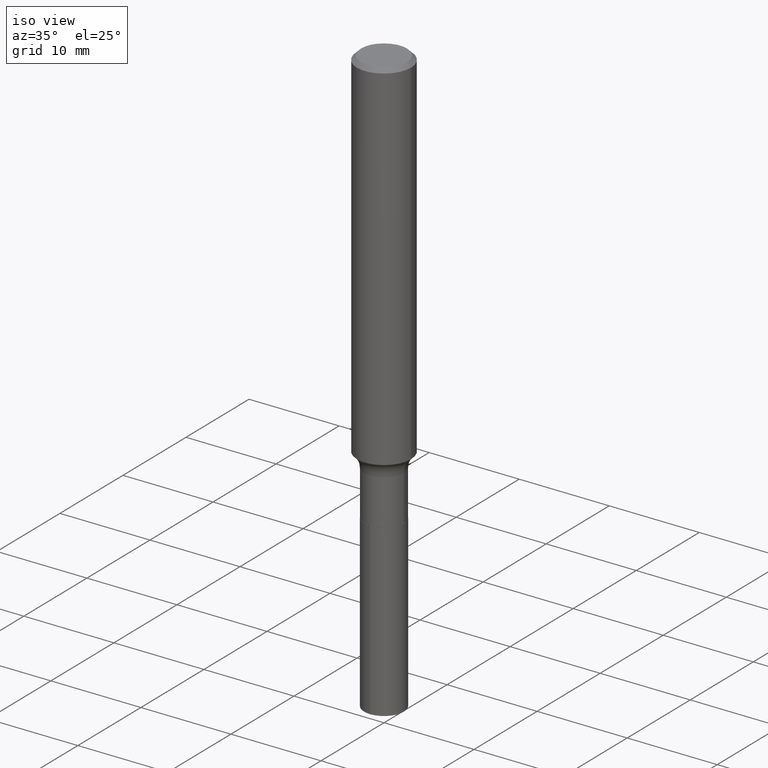
[diagram: clean part render]
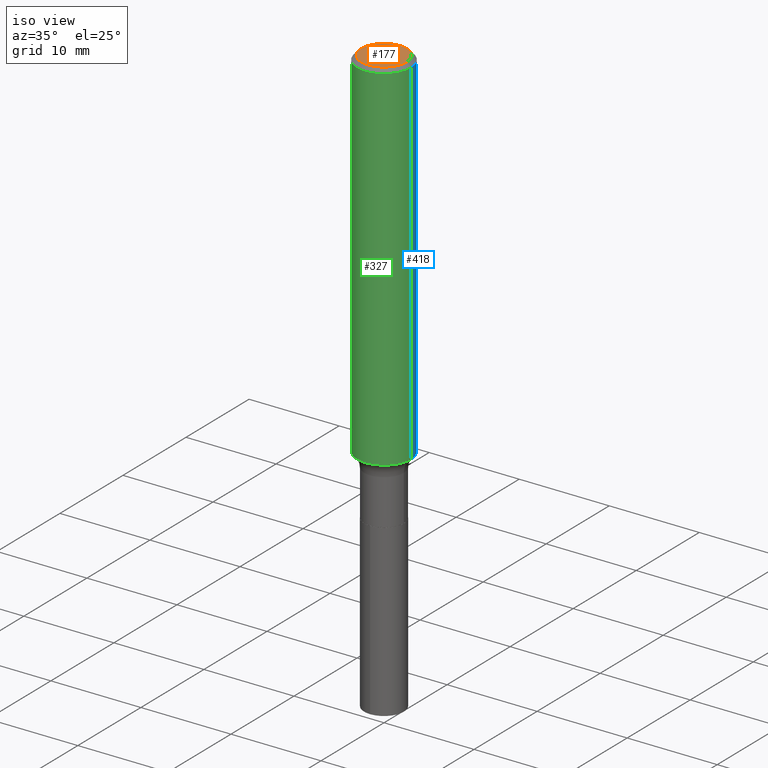
[diagram: same view with three faces highlighted in distinct colors, each labeled with its STEP entity id]
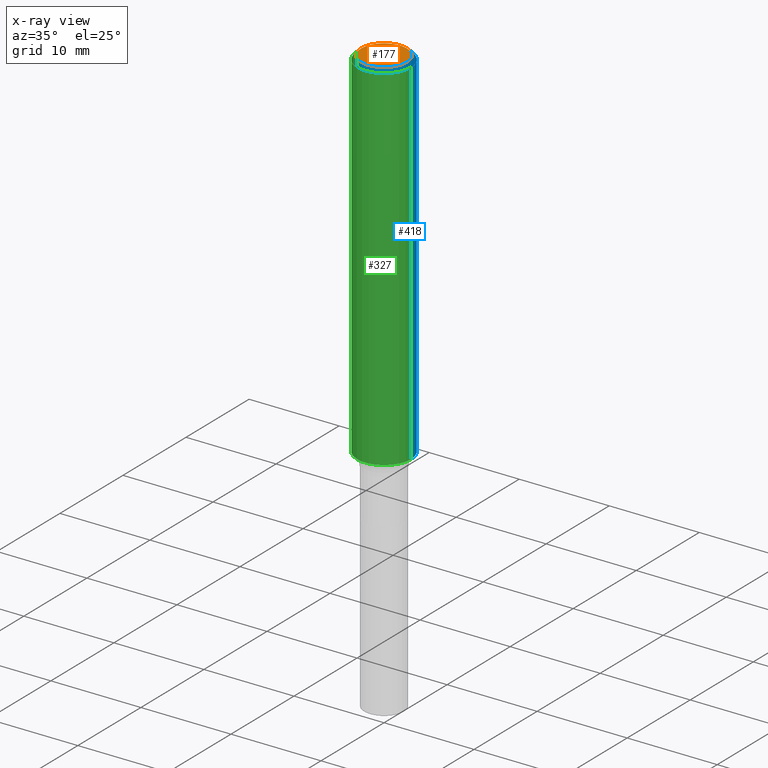
[diagram: x-ray of the same camera — body ghosted, the three highlighted faces saturated]
A machine part, iso view with three faces highlighted in distinct colors.
The next image is the same camera in x-ray (body ghosted, the three faces saturated) — at least one of them is partly hidden behind the body in this view.
Their STEP definitions:

[orange] entity #177 — the highlighted planar face has unit normal (0, -0, -1).
#15 = ORIENTED_EDGE ( 'NONE', *, *, #126, .T. ) ;
#27 = VERTEX_POINT ( 'NONE', #184 ) ;
#65 = ORIENTED_EDGE ( 'NONE', *, *, #92, .T. ) ;
#73 = AXIS2_PLACEMENT_3D ( 'NONE', #108, #151, #156 ) ;
#79 = FACE_OUTER_BOUND ( 'NONE', #315, .T. ) ;
#90 = AXIS2_PLACEMENT_3D ( 'NONE', #286, #434, #215 ) ;
#92 = EDGE_CURVE ( 'NONE', #27, #466, #443, .T. ) ;
#108 = CARTESIAN_POINT ( 'NONE',  ( 1.002970424325033577E-46, -1.431975951230896486E-32, -4.101342130344485961E-18 ) ) ;
#126 = EDGE_CURVE ( 'NONE', #466, #27, #199, .T. ) ;
#151 = DIRECTION ( 'NONE',  ( -2.445468806185136597E-29, 3.491481338843145583E-15, 1.000000000000000000 ) ) ;
#156 = DIRECTION ( 'NONE',  ( 1.000000000000000000, -6.982962677686266711E-15, 4.876140833081945105E-29 ) ) ;
#163 = DIRECTION ( 'NONE',  ( 2.438088387897960049E-29, -3.491481338843145188E-15, -1.000000000000000000 ) ) ;
#177 = ADVANCED_FACE ( 'NONE', ( #79 ), #337, .F. ) ;
#184 = CARTESIAN_POINT ( 'NONE',  ( -0.1003850000000000020, 7.319105043583386689E-16, -4.101342130349496461E-18 ) ) ;
#199 = CIRCLE ( 'NONE', #90, 0.1003850000000000020 ) ;
#215 = DIRECTION ( 'NONE',  ( 1.000000000000000000, -6.982962677686266711E-15, 4.876140833081945105E-29 ) ) ;
#227 = CARTESIAN_POINT ( 'NONE',  ( 0.1003850000000000020, -7.803837484803598359E-16, -4.101342130339306751E-18 ) ) ;
#286 = CARTESIAN_POINT ( 'NONE',  ( 1.002970424325033577E-46, -1.431975951230896486E-32, -4.101342130344485961E-18 ) ) ;
#294 = AXIS2_PLACEMENT_3D ( 'NONE', #404, #163, #407 ) ;
#315 = EDGE_LOOP ( 'NONE', ( #65, #15 ) ) ;
#337 = PLANE ( 'NONE',  #294 ) ;
#404 = CARTESIAN_POINT ( 'NONE',  ( 5.014852121625167883E-47, -7.159879756154482429E-33, -2.050671065172242981E-18 ) ) ;
#407 = DIRECTION ( 'NONE',  ( -1.000000000000000000, 6.982962677686265922E-15, -4.876176775795935793E-29 ) ) ;
#434 = DIRECTION ( 'NONE',  ( -2.445468806185136597E-29, 3.491481338843145583E-15, 1.000000000000000000 ) ) ;
#443 = CIRCLE ( 'NONE', #73, 0.1003850000000000020 ) ;
#466 = VERTEX_POINT ( 'NONE', #227 ) ;

[blue] entity #418 — the highlighted cylindrical surface (edge-blend (fillet) strip) has radius 2.9997 mm, axis along (-0, 0, 1).
#3 = VECTOR ( 'NONE', #142, 39.37007874015748143 ) ;
#24 = AXIS2_PLACEMENT_3D ( 'NONE', #339, #402, #455 ) ;
#32 = DIRECTION ( 'NONE',  ( -2.445468806185136877E-29, 3.491481338843145188E-15, 1.000000000000000000 ) ) ;
#33 = EDGE_CURVE ( 'NONE', #241, #180, #186, .T. ) ;
#58 = EDGE_CURVE ( 'NONE', #241, #400, #355, .T. ) ;
#124 = EDGE_CURVE ( 'NONE', #400, #384, #319, .T. ) ;
#131 = AXIS2_PLACEMENT_3D ( 'NONE', #448, #413, #490 ) ;
#135 = ORIENTED_EDGE ( 'NONE', *, *, #33, .F. ) ;
#140 = VECTOR ( 'NONE', #32, 39.37007874015748143 ) ;
#142 = DIRECTION ( 'NONE',  ( -2.445468806185136877E-29, 3.491481338843145188E-15, 1.000000000000000000 ) ) ;
#180 = VERTEX_POINT ( 'NONE', #304 ) ;
#186 = LINE ( 'NONE', #292, #140 ) ;
#196 = CYLINDRICAL_SURFACE ( 'NONE', #24, 0.1181000000000000799 ) ;
#241 = VERTEX_POINT ( 'NONE', #242 ) ;
#242 = CARTESIAN_POINT ( 'NONE',  ( 0.1181000000000001909, -6.288423672468409536E-15, -1.564876122764555344 ) ) ;
#292 = CARTESIAN_POINT ( 'NONE',  ( 0.1181000000000000799, -8.246878922347486570E-16, 5.758764772215004644E-30 ) ) ;
#295 = EDGE_LOOP ( 'NONE', ( #316, #472, #439, #135 ) ) ;
#304 = CARTESIAN_POINT ( 'NONE',  ( 0.1180999999999999966, -8.865394841523547570E-16, -0.01771500000000010913 ) ) ;
#316 = ORIENTED_EDGE ( 'NONE', *, *, #58, .T. ) ;
#319 = LINE ( 'NONE', #477, #3 ) ;
#320 = CIRCLE ( 'NONE', #131, 0.1180999999999999966 ) ;
#328 = DIRECTION ( 'NONE',  ( 1.000000000000000000, -6.982962677686270655E-15, 0.000000000000000000 ) ) ;
#329 = AXIS2_PLACEMENT_3D ( 'NONE', #363, #359, #328 ) ;
#335 = EDGE_CURVE ( 'NONE', #180, #384, #320, .T. ) ;
#336 = CARTESIAN_POINT ( 'NONE',  ( -0.1181000000000001909, -4.624584809300980709E-15, -1.564876122764555344 ) ) ;
#339 = CARTESIAN_POINT ( 'NONE',  ( 0.000000000000000000, 0.000000000000000000, 0.000000000000000000 ) ) ;
#355 = CIRCLE ( 'NONE', #329, 0.1181000000000001632 ) ;
#359 = DIRECTION ( 'NONE',  ( -2.445468806185136597E-29, 3.491481338843145583E-15, 1.000000000000000000 ) ) ;
#363 = CARTESIAN_POINT ( 'NONE',  ( 3.826855743764662661E-29, -5.463735780233660484E-15, -1.564876122764555344 ) ) ;
#366 = CARTESIAN_POINT ( 'NONE',  ( -0.1180999999999999966, -1.923642715142953961E-15, -0.01771500000000010913 ) ) ;
#372 = FACE_OUTER_BOUND ( 'NONE', #295, .T. ) ;
#384 = VERTEX_POINT ( 'NONE', #366 ) ;
#400 = VERTEX_POINT ( 'NONE', #336 ) ;
#402 = DIRECTION ( 'NONE',  ( -2.445468806185136597E-29, 3.491481338843145583E-15, 1.000000000000000000 ) ) ;
#413 = DIRECTION ( 'NONE',  ( -2.445468806185136597E-29, 3.491481338843145583E-15, 1.000000000000000000 ) ) ;
#418 = ADVANCED_FACE ( 'NONE', ( #372 ), #196, .T. ) ;
#439 = ORIENTED_EDGE ( 'NONE', *, *, #335, .F. ) ;
#448 = CARTESIAN_POINT ( 'NONE',  ( 4.332147990156996744E-31, -6.185159191760670395E-17, -0.01771500000000010913 ) ) ;
#455 = DIRECTION ( 'NONE',  ( 1.000000000000000000, -6.982962677686266711E-15, 4.876176775795936353E-29 ) ) ;
#472 = ORIENTED_EDGE ( 'NONE', *, *, #124, .T. ) ;
#477 = CARTESIAN_POINT ( 'NONE',  ( -0.1181000000000000799, 8.391509709326788873E-16, -5.809262341591047988E-30 ) ) ;
#490 = DIRECTION ( 'NONE',  ( 1.000000000000000000, -6.982962677686266711E-15, 0.000000000000000000 ) ) ;

[green] entity #327 — the highlighted cylindrical surface (edge-blend (fillet) strip) has radius 2.9997 mm, axis along (-0, 0, 1).
#3 = VECTOR ( 'NONE', #142, 39.37007874015748143 ) ;
#17 = AXIS2_PLACEMENT_3D ( 'NONE', #300, #264, #484 ) ;
#28 = CYLINDRICAL_SURFACE ( 'NONE', #204, 0.1181000000000000799 ) ;
#32 = DIRECTION ( 'NONE',  ( -2.445468806185136877E-29, 3.491481338843145188E-15, 1.000000000000000000 ) ) ;
#33 = EDGE_CURVE ( 'NONE', #241, #180, #186, .T. ) ;
#59 = EDGE_LOOP ( 'NONE', ( #470, #282, #210, #74 ) ) ;
#71 = FACE_OUTER_BOUND ( 'NONE', #59, .T. ) ;
#74 = ORIENTED_EDGE ( 'NONE', *, *, #459, .F. ) ;
#78 = DIRECTION ( 'NONE',  ( -2.445468806185136597E-29, 3.491481338843145583E-15, 1.000000000000000000 ) ) ;
#84 = EDGE_CURVE ( 'NONE', #400, #241, #464, .T. ) ;
#124 = EDGE_CURVE ( 'NONE', #400, #384, #319, .T. ) ;
#140 = VECTOR ( 'NONE', #32, 39.37007874015748143 ) ;
#142 = DIRECTION ( 'NONE',  ( -2.445468806185136877E-29, 3.491481338843145188E-15, 1.000000000000000000 ) ) ;
#150 = CARTESIAN_POINT ( 'NONE',  ( 0.000000000000000000, 0.000000000000000000, 0.000000000000000000 ) ) ;
#154 = DIRECTION ( 'NONE',  ( 1.000000000000000000, -6.982962677686266711E-15, 4.876176775795936353E-29 ) ) ;
#180 = VERTEX_POINT ( 'NONE', #304 ) ;
#186 = LINE ( 'NONE', #292, #140 ) ;
#204 = AXIS2_PLACEMENT_3D ( 'NONE', #150, #440, #154 ) ;
#210 = ORIENTED_EDGE ( 'NONE', *, *, #33, .T. ) ;
#241 = VERTEX_POINT ( 'NONE', #242 ) ;
#242 = CARTESIAN_POINT ( 'NONE',  ( 0.1181000000000001909, -6.288423672468409536E-15, -1.564876122764555344 ) ) ;
#264 = DIRECTION ( 'NONE',  ( -2.445468806185136597E-29, 3.491481338843145583E-15, 1.000000000000000000 ) ) ;
#282 = ORIENTED_EDGE ( 'NONE', *, *, #84, .T. ) ;
#292 = CARTESIAN_POINT ( 'NONE',  ( 0.1181000000000000799, -8.246878922347486570E-16, 5.758764772215004644E-30 ) ) ;
#300 = CARTESIAN_POINT ( 'NONE',  ( 4.332147990156996744E-31, -6.185159191760670395E-17, -0.01771500000000010913 ) ) ;
#304 = CARTESIAN_POINT ( 'NONE',  ( 0.1180999999999999966, -8.865394841523547570E-16, -0.01771500000000010913 ) ) ;
#319 = LINE ( 'NONE', #477, #3 ) ;
#327 = ADVANCED_FACE ( 'NONE', ( #71 ), #28, .T. ) ;
#336 = CARTESIAN_POINT ( 'NONE',  ( -0.1181000000000001909, -4.624584809300980709E-15, -1.564876122764555344 ) ) ;
#340 = AXIS2_PLACEMENT_3D ( 'NONE', #482, #78, #485 ) ;
#366 = CARTESIAN_POINT ( 'NONE',  ( -0.1180999999999999966, -1.923642715142953961E-15, -0.01771500000000010913 ) ) ;
#384 = VERTEX_POINT ( 'NONE', #366 ) ;
#400 = VERTEX_POINT ( 'NONE', #336 ) ;
#440 = DIRECTION ( 'NONE',  ( -2.445468806185136597E-29, 3.491481338843145583E-15, 1.000000000000000000 ) ) ;
#459 = EDGE_CURVE ( 'NONE', #384, #180, #467, .T. ) ;
#464 = CIRCLE ( 'NONE', #340, 0.1181000000000001632 ) ;
#467 = CIRCLE ( 'NONE', #17, 0.1180999999999999966 ) ;
#470 = ORIENTED_EDGE ( 'NONE', *, *, #124, .F. ) ;
#477 = CARTESIAN_POINT ( 'NONE',  ( -0.1181000000000000799, 8.391509709326788873E-16, -5.809262341591047988E-30 ) ) ;
#482 = CARTESIAN_POINT ( 'NONE',  ( 3.826855743764662661E-29, -5.463735780233660484E-15, -1.564876122764555344 ) ) ;
#484 = DIRECTION ( 'NONE',  ( 1.000000000000000000, -6.982962677686266711E-15, 0.000000000000000000 ) ) ;
#485 = DIRECTION ( 'NONE',  ( 1.000000000000000000, -6.982962677686270655E-15, 0.000000000000000000 ) ) ;